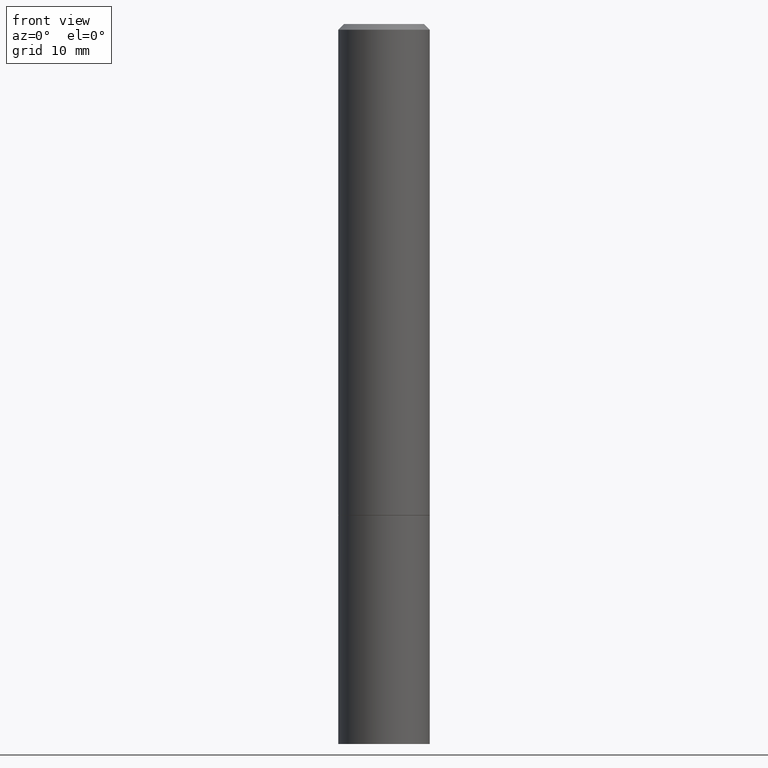
[diagram: clean part render]
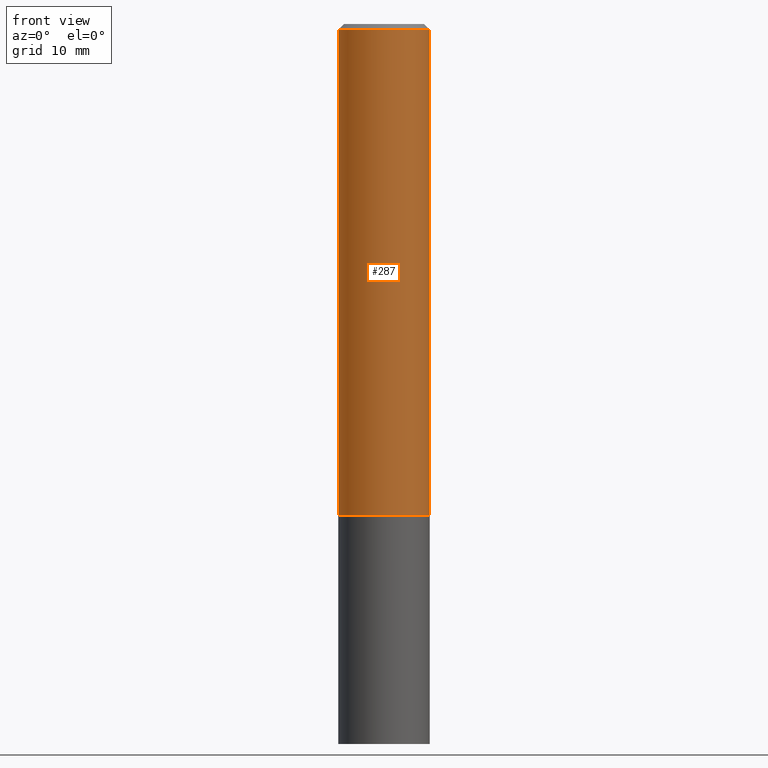
[diagram: same view with one face highlighted and labeled with its STEP entity id]
A machine part, front view. The second image highlights one B-rep face of the part: STEP entity #287.
In plain terms, the highlighted cylindrical surface (partial cylindrical patch) has radius 4.0005 mm, axis along (-0, 0, 1).
Its self-contained STEP definition (entity closure, byte-faithful):
#7 = AXIS2_PLACEMENT_3D ( 'NONE', #323, #81, #192 ) ;
#24 = DIRECTION ( 'NONE',  ( -2.445468806185136877E-29, 3.491481338843145188E-15, 1.000000000000000000 ) ) ;
#54 = CYLINDRICAL_SURFACE ( 'NONE', #70, 0.1574999999999998901 ) ;
#58 = EDGE_LOOP ( 'NONE', ( #255, #94, #284, #351 ) ) ;
#60 = CARTESIAN_POINT ( 'NONE',  ( 0.1574999999999998346, -1.150358061425877894E-15, -0.02000000000000001429 ) ) ;
#70 = AXIS2_PLACEMENT_3D ( 'NONE', #247, #85, #110 ) ;
#80 = DIRECTION ( 'NONE',  ( 1.000000000000000000, -6.982962677686265922E-15, 0.000000000000000000 ) ) ;
#81 = DIRECTION ( 'NONE',  ( -2.445468806185136597E-29, 3.491481338843145583E-15, 1.000000000000000000 ) ) ;
#85 = DIRECTION ( 'NONE',  ( -2.445468806185136597E-29, 3.491481338843145583E-15, 1.000000000000000000 ) ) ;
#90 = VERTEX_POINT ( 'NONE', #292 ) ;
#94 = ORIENTED_EDGE ( 'NONE', *, *, #218, .T. ) ;
#108 = EDGE_CURVE ( 'NONE', #123, #288, #181, .T. ) ;
#110 = DIRECTION ( 'NONE',  ( 1.000000000000000000, -6.982962677686266711E-15, 4.876176775795935793E-29 ) ) ;
#123 = VERTEX_POINT ( 'NONE', #240 ) ;
#135 = CARTESIAN_POINT ( 'NONE',  ( 4.890937612370275786E-31, -6.982962677686296539E-17, -0.02000000000000001429 ) ) ;
#136 = VECTOR ( 'NONE', #24, 39.37007874015748143 ) ;
#143 = CARTESIAN_POINT ( 'NONE',  ( -0.1574999999999998901, 1.119104808822157012E-15, -7.747322767151471379E-30 ) ) ;
#154 = VERTEX_POINT ( 'NONE', #275 ) ;
#170 = EDGE_CURVE ( 'NONE', #90, #288, #358, .T. ) ;
#179 = EDGE_CURVE ( 'NONE', #154, #123, #193, .T. ) ;
#181 = CIRCLE ( 'NONE', #201, 0.1574999999999998346 ) ;
#192 = DIRECTION ( 'NONE',  ( 1.000000000000000000, -6.982962677686268288E-15, 0.000000000000000000 ) ) ;
#193 = LINE ( 'NONE', #143, #364 ) ;
#195 = CARTESIAN_POINT ( 'NONE',  ( 0.1574999999999998901, -1.099816621735586297E-15, 7.679978421878593829E-30 ) ) ;
#198 = CIRCLE ( 'NONE', #7, 0.1575000000000000011 ) ;
#201 = AXIS2_PLACEMENT_3D ( 'NONE', #135, #315, #80 ) ;
#217 = DIRECTION ( 'NONE',  ( -2.445468806185136877E-29, 3.491481338843145188E-15, 1.000000000000000000 ) ) ;
#218 = EDGE_CURVE ( 'NONE', #154, #90, #198, .T. ) ;
#240 = CARTESIAN_POINT ( 'NONE',  ( -0.1574999999999998346, 1.029986994958722802E-15, -0.02000000000000001429 ) ) ;
#247 = CARTESIAN_POINT ( 'NONE',  ( 0.000000000000000000, 0.000000000000000000, 0.000000000000000000 ) ) ;
#255 = ORIENTED_EDGE ( 'NONE', *, *, #179, .F. ) ;
#274 = FACE_OUTER_BOUND ( 'NONE', #58, .T. ) ;
#275 = CARTESIAN_POINT ( 'NONE',  ( -0.1575000000000000011, -1.869428643160630319E-15, -1.691899999999999959 ) ) ;
#284 = ORIENTED_EDGE ( 'NONE', *, *, #170, .T. ) ;
#287 = ADVANCED_FACE ( 'NONE', ( #274 ), #54, .T. ) ;
#288 = VERTEX_POINT ( 'NONE', #60 ) ;
#292 = CARTESIAN_POINT ( 'NONE',  ( 0.1575000000000000011, -7.007053898924305548E-15, -1.691899999999999959 ) ) ;
#315 = DIRECTION ( 'NONE',  ( -2.445468806185136597E-29, 3.491481338843145583E-15, 1.000000000000000000 ) ) ;
#323 = CARTESIAN_POINT ( 'NONE',  ( 4.137488673184632754E-29, -5.907237277188718068E-15, -1.691899999999999959 ) ) ;
#351 = ORIENTED_EDGE ( 'NONE', *, *, #108, .F. ) ;
#358 = LINE ( 'NONE', #195, #136 ) ;
#364 = VECTOR ( 'NONE', #217, 39.37007874015748143 ) ;